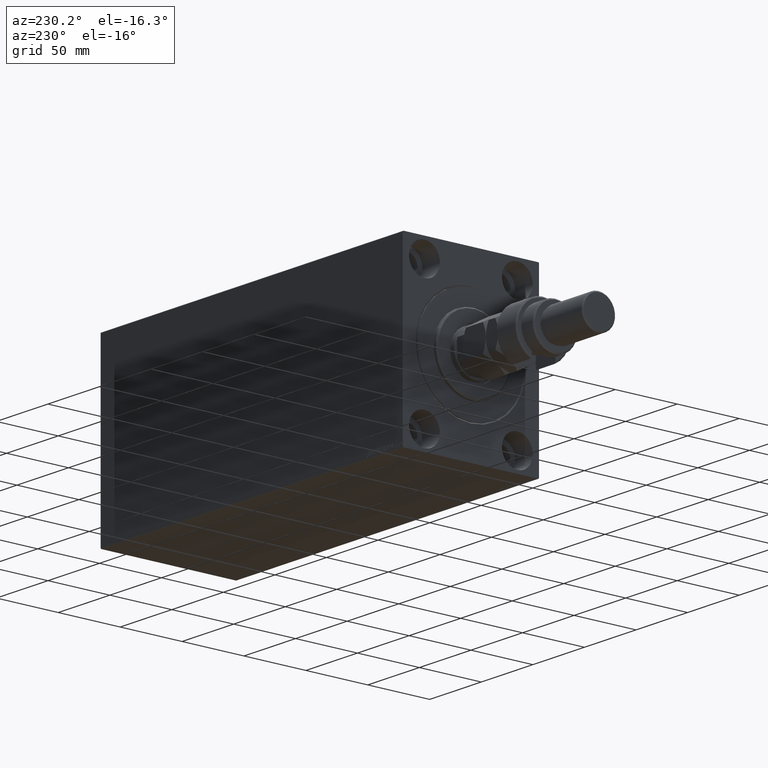
[diagram: clean part render]
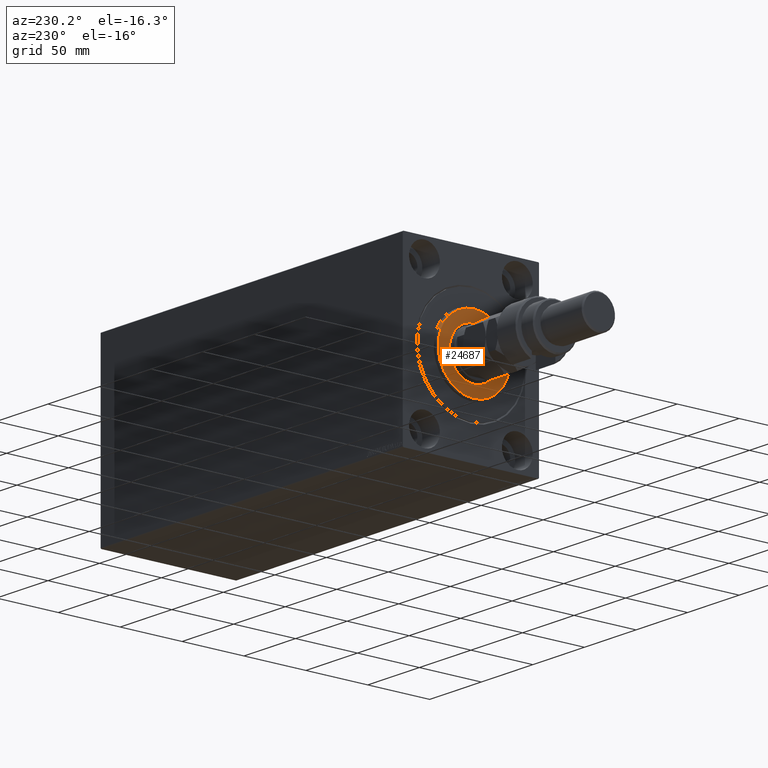
[diagram: same view with one face highlighted and labeled with its STEP entity id]
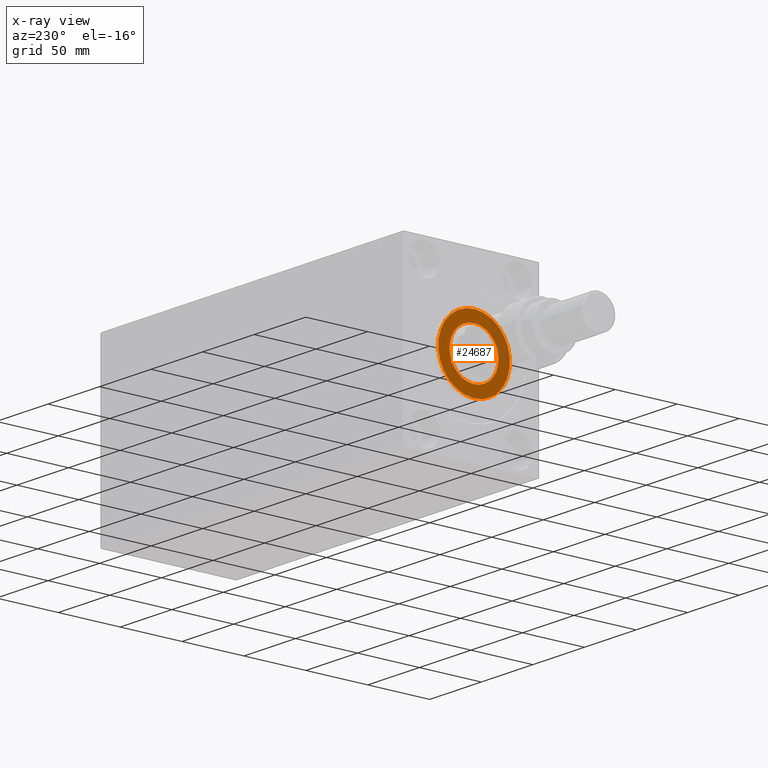
[diagram: x-ray of the same camera — body ghosted, the highlighted face saturated]
A machine part, auxiliary view. The second image highlights one B-rep face of the part: STEP entity #24687.
The next image is the same camera in x-ray: the body ghosted, the highlighted face saturated — about 17% of this face is hidden behind the body in this view.
In plain terms, the highlighted planar face has unit normal (-1, 0, 0).
Its self-contained STEP definition (entity closure, byte-faithful):
#628 = VERTEX_POINT ( 'NONE', #31144 ) ;
#650 = ORIENTED_EDGE ( 'NONE', *, *, #14448, .T. ) ;
#1410 = EDGE_CURVE ( 'NONE', #30748, #45272, #22091, .T. ) ;
#2190 = EDGE_LOOP ( 'NONE', ( #17792, #650 ) ) ;
#3847 = CIRCLE ( 'NONE', #9854, 28.99999999999999289 ) ;
#4941 = CARTESIAN_POINT ( 'NONE',  ( 3.000000000000000000, 0.000000000000000000, 19.75000000000000000 ) ) ;
#8382 = CARTESIAN_POINT ( 'NONE',  ( 3.000000000000000000, 3.612708057484691604E-15, -28.99999999999999289 ) ) ;
#9854 = AXIS2_PLACEMENT_3D ( 'NONE', #27262, #45448, #27962 ) ;
#11436 = DIRECTION ( 'NONE',  ( 0.000000000000000000, 0.000000000000000000, -1.000000000000000000 ) ) ;
#13243 = AXIS2_PLACEMENT_3D ( 'NONE', #21822, #33148, #15219 ) ;
#13862 = DIRECTION ( 'NONE',  ( 1.000000000000000000, -0.000000000000000000, 0.000000000000000000 ) ) ;
#14448 = EDGE_CURVE ( 'NONE', #628, #40404, #27584, .T. ) ;
#15219 = DIRECTION ( 'NONE',  ( 0.000000000000000000, 0.000000000000000000, -1.000000000000000000 ) ) ;
#16751 = DIRECTION ( 'NONE',  ( 1.000000000000000000, -0.000000000000000000, 0.000000000000000000 ) ) ;
#16807 = ORIENTED_EDGE ( 'NONE', *, *, #32765, .T. ) ;
#17635 = EDGE_LOOP ( 'NONE', ( #44994, #16807 ) ) ;
#17792 = ORIENTED_EDGE ( 'NONE', *, *, #42283, .T. ) ;
#21822 = CARTESIAN_POINT ( 'NONE',  ( 3.000000000000000000, 0.000000000000000000, 0.000000000000000000 ) ) ;
#22091 = CIRCLE ( 'NONE', #37157, 28.99999999999999289 ) ;
#24000 = FACE_BOUND ( 'NONE', #2190, .T. ) ;
#24064 = CARTESIAN_POINT ( 'NONE',  ( 3.000000000000000000, 0.000000000000000000, 0.000000000000000000 ) ) ;
#24687 = ADVANCED_FACE ( 'NONE', ( #46445, #24000 ), #38410, .T. ) ;
#27262 = CARTESIAN_POINT ( 'NONE',  ( 3.000000000000000000, 0.000000000000000000, 0.000000000000000000 ) ) ;
#27584 = CIRCLE ( 'NONE', #13243, 19.75000000000000000 ) ;
#27856 = AXIS2_PLACEMENT_3D ( 'NONE', #28011, #13862, #45968 ) ;
#27962 = DIRECTION ( 'NONE',  ( 0.000000000000000000, 0.000000000000000000, -1.000000000000000000 ) ) ;
#28011 = CARTESIAN_POINT ( 'NONE',  ( 3.000000000000000000, 0.000000000000000000, 0.000000000000000000 ) ) ;
#30748 = VERTEX_POINT ( 'NONE', #39836 ) ;
#31144 = CARTESIAN_POINT ( 'NONE',  ( 3.000000000000000000, 2.418677428316022331E-15, -19.75000000000000000 ) ) ;
#32765 = EDGE_CURVE ( 'NONE', #45272, #30748, #3847, .T. ) ;
#33148 = DIRECTION ( 'NONE',  ( -1.000000000000000000, 0.000000000000000000, -0.000000000000000000 ) ) ;
#35706 = AXIS2_PLACEMENT_3D ( 'NONE', #43787, #35990, #11436 ) ;
#35990 = DIRECTION ( 'NONE',  ( -1.000000000000000000, 0.000000000000000000, -0.000000000000000000 ) ) ;
#37157 = AXIS2_PLACEMENT_3D ( 'NONE', #24064, #16751, #38712 ) ;
#38410 = PLANE ( 'NONE',  #27856 ) ;
#38712 = DIRECTION ( 'NONE',  ( 0.000000000000000000, 0.000000000000000000, -1.000000000000000000 ) ) ;
#39836 = CARTESIAN_POINT ( 'NONE',  ( 3.000000000000000000, 0.000000000000000000, 28.99999999999999289 ) ) ;
#40229 = CIRCLE ( 'NONE', #35706, 19.75000000000000000 ) ;
#40404 = VERTEX_POINT ( 'NONE', #4941 ) ;
#42283 = EDGE_CURVE ( 'NONE', #40404, #628, #40229, .T. ) ;
#43787 = CARTESIAN_POINT ( 'NONE',  ( 3.000000000000000000, 0.000000000000000000, 0.000000000000000000 ) ) ;
#44994 = ORIENTED_EDGE ( 'NONE', *, *, #1410, .T. ) ;
#45272 = VERTEX_POINT ( 'NONE', #8382 ) ;
#45448 = DIRECTION ( 'NONE',  ( 1.000000000000000000, -0.000000000000000000, 0.000000000000000000 ) ) ;
#45968 = DIRECTION ( 'NONE',  ( 0.000000000000000000, 0.000000000000000000, -1.000000000000000000 ) ) ;
#46445 = FACE_OUTER_BOUND ( 'NONE', #17635, .T. ) ;